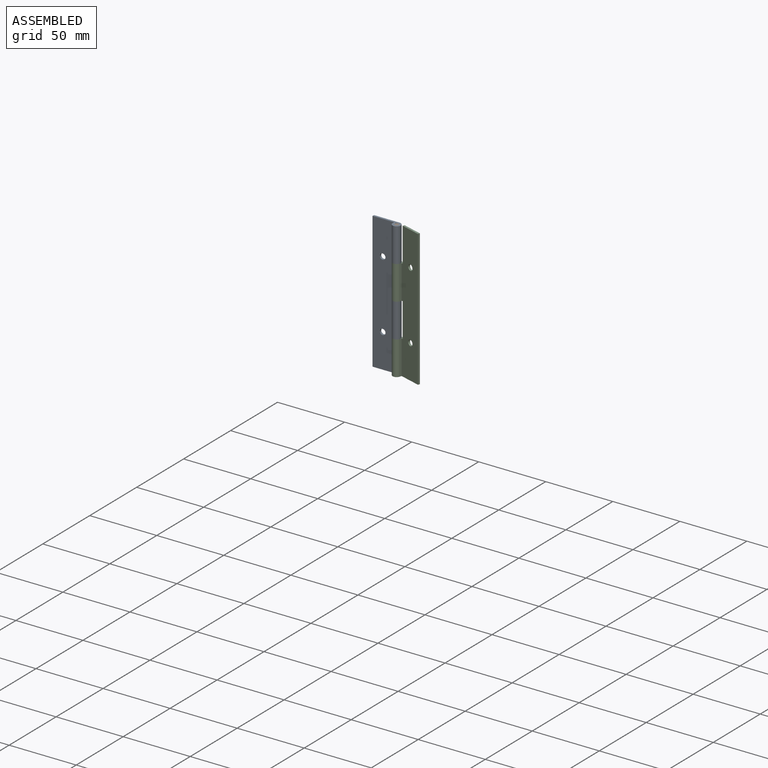
[diagram: assembled view]
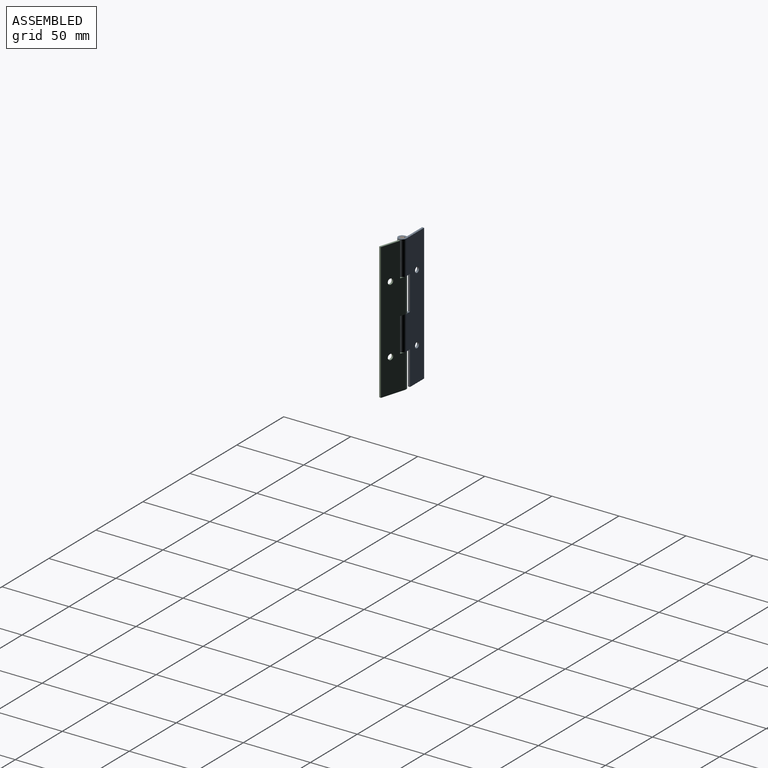
[diagram: assembled view, second angle]
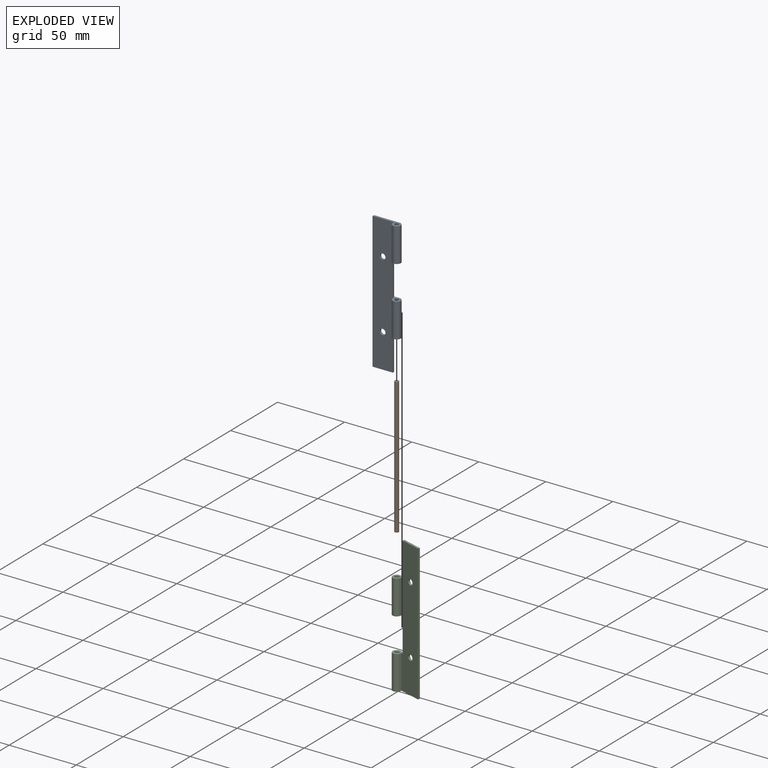
[diagram: exploded view]
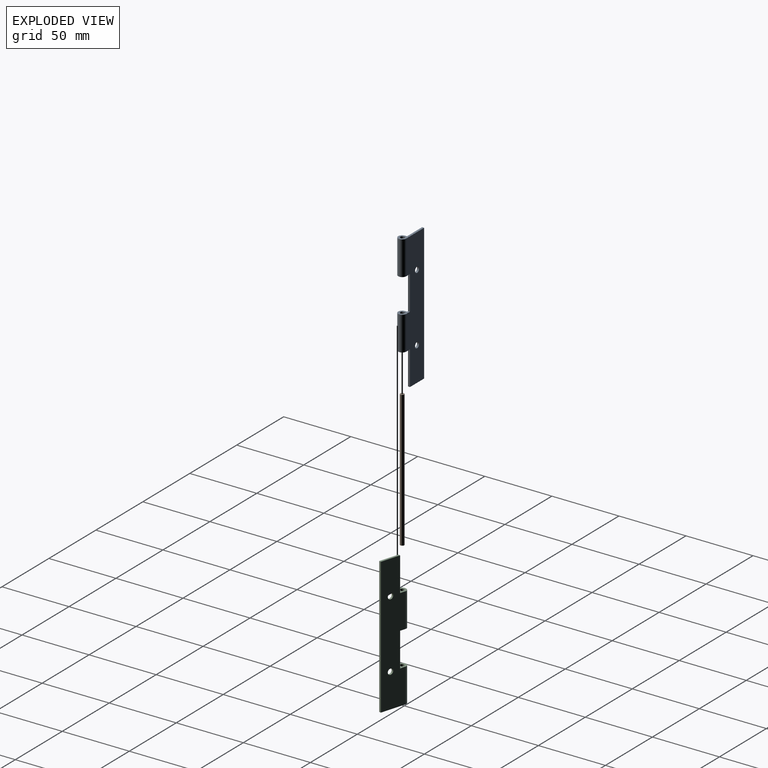
[diagram: exploded view, second angle]
ASSEMBLY  parts=3 mates=2
PART A: 22 faces, bbox 22.1x6x101.6 mm
  f0: plane 101.6x1.52mm, normal (-1,0,0), area 154.4mm2, adj f1,f5,f8,f14
  f1: plane 22.07x6.04mm, normal (0,0,1), area 47.4mm2, adj f0,f2,f3,f4,f5,f6,f7,f8
  f2: plane 25.4x1.52mm, normal (0,1,0), area 38.6mm2, adj f1,f4,f7,f10
  f3: cylinder r=3.02mm len=25.4mm, axis (0,0,-1), area 361.5mm2, adj f1,f4,f5,f10
  f4: plane 25.4x1.5mm, normal (-1,0,0), area 38.1mm2, adj f1,f2,f3,f10
  f5: plane 101.6x19.05mm, normal (0,1,0), area 1705.6mm2, adj f0,f1,f3,f9,f10,f11,f12,f14
  f6: cylinder r=1.5mm len=25.4mm, axis (0,0,-1), area 179.5mm2, adj f1,f7,f8,f10
  f7: plane 25.4x1.5mm, normal (1,0,0), area 38.1mm2, adj f1,f2,f6,f10
  f8: plane 101.6x19.05mm, normal (0,-1,0), area 1705.6mm2, adj f0,f1,f6,f9,f10,f11,f12,f14
  f9: plane 25.4x1.52mm, normal (1,0,0), area 38.6mm2, adj f5,f8,f10,f12
  f10: plane 7x6.04mm, normal (0,0,-1), area 24.5mm2, adj f2,f3,f4,f5,f6,f7,f8,f9
  f11: cylinder r=2.1mm len=4.2mm, axis (0,-1,0), area 20.1mm2, adj f5,f8
  f12: plane 7x6.04mm, normal (0,0,1), area 24.5mm2, adj f5,f8,f9,f13,f15,f16,f17,f18
  f13: plane 25.4x1.52mm, normal (0,1,0), area 38.6mm2, adj f12,f16,f18,f20
  f14: plane 15.07x1.52mm, normal (0,0,-1), area 22.9mm2, adj f0,f5,f8,f19
  f15: cylinder r=3.02mm len=25.4mm, axis (0,0,-1), area 361.5mm2, adj f5,f12,f16,f20
  f16: plane 25.4x1.5mm, normal (-1,0,0), area 38.1mm2, adj f12,f13,f15,f20
  f17: cylinder r=1.5mm len=25.4mm, axis (0,0,-1), area 179.5mm2, adj f8,f12,f18,f20
  f18: plane 25.4x1.5mm, normal (1,0,0), area 38.1mm2, adj f12,f13,f17,f20
  f19: plane 25.4x1.52mm, normal (1,0,0), area 38.6mm2, adj f5,f8,f14,f20
  f20: plane 7x6.04mm, normal (0,0,-1), area 24.5mm2, adj f5,f8,f13,f15,f16,f17,f18,f19
  f21: cylinder r=2.1mm len=4.2mm, axis (0,-1,0), area 20.1mm2, adj f5,f8
PART B: 3 faces, bbox 3x3x101.6 mm
  f0: cylinder r=1.5mm len=101.6mm, axis (0,0,-1), area 957.6mm2, adj f1,f2
  f1: plane 3x3mm, normal (0,0,1), area 7.1mm2, adj f0
  f2: plane 3x3mm, normal (0,0,-1), area 7.1mm2, adj f0
PART C: 22 faces, bbox 22.1x6x101.6 mm
  f0: plane 101.6x1.52mm, normal (1,0,0), area 154.4mm2, adj f3,f6,f9,f13
  f1: plane 7x6.04mm, normal (0,0,-1), area 24.5mm2, adj f2,f4,f5,f6,f7,f8,f9,f19
  f2: plane 25.4x1.52mm, normal (0,1,0), area 38.6mm2, adj f1,f5,f8,f11
  f3: plane 15.07x1.52mm, normal (0,0,1), area 22.9mm2, adj f0,f6,f9,f10
  f4: cylinder r=3.02mm len=25.4mm, axis (0,0,1), area 361.5mm2, adj f1,f5,f6,f11
  f5: plane 25.4x1.5mm, normal (1,0,0), area 38.1mm2, adj f1,f2,f4,f11
  f6: plane 101.6x19.05mm, normal (0,1,0), area 1705.6mm2, adj f0,f1,f3,f4,f10,f11,f12,f13
  f7: cylinder r=1.5mm len=25.4mm, axis (0,0,1), area 179.5mm2, adj f1,f8,f9,f11
  f8: plane 25.4x1.5mm, normal (-1,0,0), area 38.1mm2, adj f1,f2,f7,f11
  f9: plane 101.6x19.05mm, normal (0,-1,0), area 1705.6mm2, adj f0,f1,f3,f7,f10,f11,f12,f13
  f10: plane 25.4x1.52mm, normal (-1,0,0), area 38.6mm2, adj f3,f6,f9,f11
  f11: plane 7x6.04mm, normal (0,0,1), area 24.5mm2, adj f2,f4,f5,f6,f7,f8,f9,f10
  f12: cylinder r=2.1mm len=4.2mm, axis (0,-1,0), area 20.1mm2, adj f6,f9
  f13: plane 22.07x6.04mm, normal (0,0,-1), area 47.4mm2, adj f0,f6,f9,f14,f15,f16,f17,f18
  f14: plane 25.4x1.52mm, normal (0,1,0), area 38.6mm2, adj f13,f16,f18,f20
  f15: cylinder r=3.02mm len=25.4mm, axis (0,0,1), area 361.5mm2, adj f6,f13,f16,f20
  f16: plane 25.4x1.5mm, normal (1,0,0), area 38.1mm2, adj f13,f14,f15,f20
  f17: cylinder r=1.5mm len=25.4mm, axis (0,0,1), area 179.5mm2, adj f9,f13,f18,f20
  f18: plane 25.4x1.5mm, normal (-1,0,0), area 38.1mm2, adj f13,f14,f17,f20
  f19: plane 25.4x1.52mm, normal (-1,0,0), area 38.6mm2, adj f1,f6,f9,f20
  f20: plane 7x6.04mm, normal (0,0,1), area 24.5mm2, adj f6,f9,f14,f15,f16,f17,f18,f19
  f21: cylinder r=2.1mm len=4.2mm, axis (0,-1,0), area 20.1mm2, adj f6,f9
PLACE A at identity fixed
PLACE B at identity
PLACE C rot(axis=(0,0,-1),16.6deg) t=(0.43,-0.06,0)mm
MATE revolute A.f15 <-> C.f4  axis (0,0,-1) through (0,-1.5,0)mm
MATE fastened B.f0 <-> A.f3  axis (0,0,1) through (0,-1.5,50.8)mm
